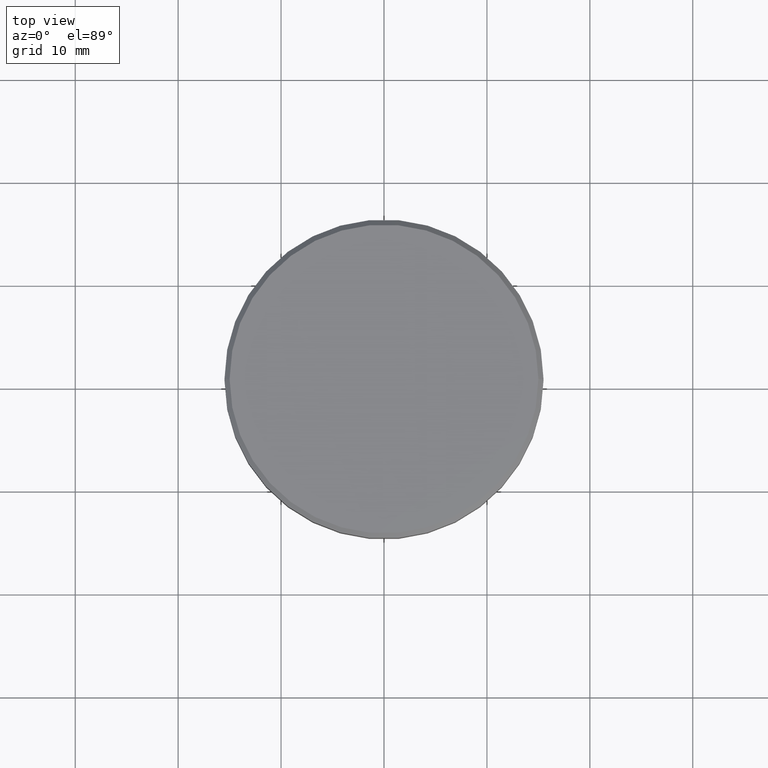
[diagram: clean part render]
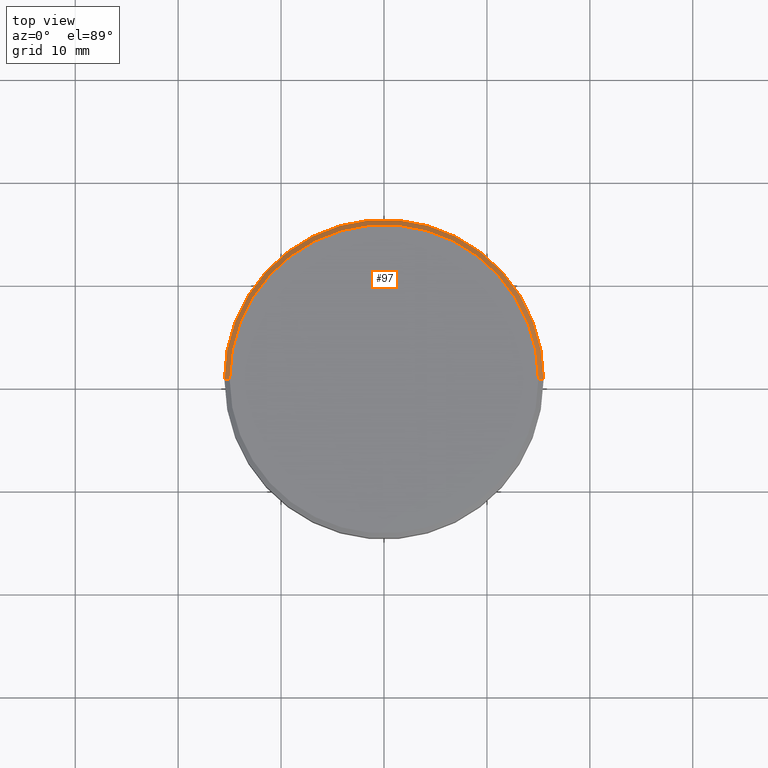
[diagram: same view with one face highlighted and labeled with its STEP entity id]
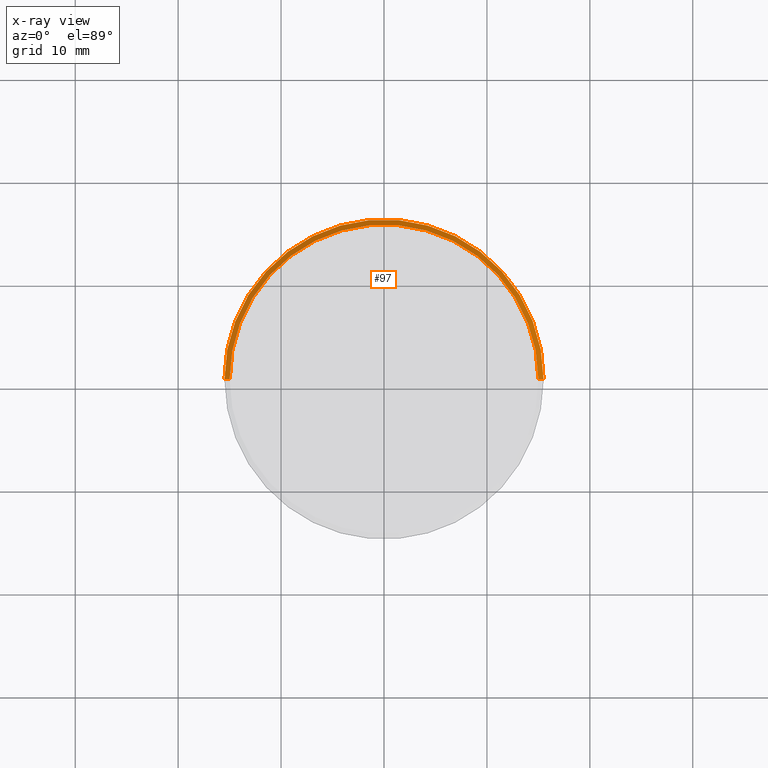
[diagram: x-ray of the same camera — body ghosted, the highlighted face saturated]
A machine part, top view. The second image highlights one B-rep face of the part: STEP entity #97.
The next image is the same camera in x-ray: the body ghosted, the highlighted face saturated — about 0% of this face is hidden behind the body in this view.
In plain terms, the highlighted conical surface has half-angle 45 deg.
Its self-contained STEP definition (entity closure, byte-faithful):
#45 = DIRECTION ( 'NONE',  ( 1.000000000000000000, 0.000000000000000000, 0.000000000000000000 ) ) ;
#51 = DIRECTION ( 'NONE',  ( 0.000000000000000000, 0.000000000000000000, -1.000000000000000000 ) ) ;
#71 = LINE ( 'NONE', #918, #846 ) ;
#94 = ORIENTED_EDGE ( 'NONE', *, *, #562, .F. ) ;
#97 = ADVANCED_FACE ( 'NONE', ( #658 ), #326, .T. ) ;
#122 = DIRECTION ( 'NONE',  ( 0.000000000000000000, 0.000000000000000000, -1.000000000000000000 ) ) ;
#126 = DIRECTION ( 'NONE',  ( 0.7071067811865439090, 8.659560562354888485E-17, -0.7071067811865512365 ) ) ;
#137 = VECTOR ( 'NONE', #126, 999.9999999999998863 ) ;
#157 = AXIS2_PLACEMENT_3D ( 'NONE', #873, #51, #45 ) ;
#181 = ORIENTED_EDGE ( 'NONE', *, *, #679, .F. ) ;
#290 = CARTESIAN_POINT ( 'NONE',  ( 0.000000000000000000, 0.000000000000000000, 0.000000000000000000 ) ) ;
#326 = CONICAL_SURFACE ( 'NONE', #789, 15.00000000000000000, 0.7853981633974430610 ) ;
#416 = DIRECTION ( 'NONE',  ( -0.000000000000000000, -0.000000000000000000, 1.000000000000000000 ) ) ;
#517 = ORIENTED_EDGE ( 'NONE', *, *, #847, .T. ) ;
#527 = CARTESIAN_POINT ( 'NONE',  ( 15.00000000000000000, 1.867586368699713376E-15, 0.000000000000000000 ) ) ;
#562 = EDGE_CURVE ( 'NONE', #916, #608, #1160, .T. ) ;
#564 = CARTESIAN_POINT ( 'NONE',  ( -15.00000000000000000, 0.000000000000000000, 0.000000000000000000 ) ) ;
#572 = AXIS2_PLACEMENT_3D ( 'NONE', #290, #416, #840 ) ;
#608 = VERTEX_POINT ( 'NONE', #725 ) ;
#658 = FACE_OUTER_BOUND ( 'NONE', #1031, .T. ) ;
#679 = EDGE_CURVE ( 'NONE', #1183, #916, #71, .T. ) ;
#718 = CIRCLE ( 'NONE', #572, 15.00000000000000000 ) ;
#725 = CARTESIAN_POINT ( 'NONE',  ( 15.50000000000000000, 0.000000000000000000, -0.5000000000000057732 ) ) ;
#735 = EDGE_CURVE ( 'NONE', #923, #1183, #718, .T. ) ;
#789 = AXIS2_PLACEMENT_3D ( 'NONE', #1021, #122, #837 ) ;
#837 = DIRECTION ( 'NONE',  ( -1.000000000000000000, 0.000000000000000000, 0.000000000000000000 ) ) ;
#840 = DIRECTION ( 'NONE',  ( 1.000000000000000000, 0.000000000000000000, 0.000000000000000000 ) ) ;
#846 = VECTOR ( 'NONE', #913, 999.9999999999998863 ) ;
#847 = EDGE_CURVE ( 'NONE', #923, #608, #933, .T. ) ;
#873 = CARTESIAN_POINT ( 'NONE',  ( 0.000000000000000000, 0.000000000000000000, -0.5000000000000057732 ) ) ;
#903 = ORIENTED_EDGE ( 'NONE', *, *, #735, .F. ) ;
#913 = DIRECTION ( 'NONE',  ( -0.7071067811865439090, 0.000000000000000000, -0.7071067811865512365 ) ) ;
#916 = VERTEX_POINT ( 'NONE', #1071 ) ;
#918 = CARTESIAN_POINT ( 'NONE',  ( -15.00000000000000000, 0.000000000000000000, 0.000000000000000000 ) ) ;
#923 = VERTEX_POINT ( 'NONE', #527 ) ;
#933 = LINE ( 'NONE', #938, #137 ) ;
#938 = CARTESIAN_POINT ( 'NONE',  ( 15.00000000000000000, 1.836970198721029589E-15, 0.000000000000000000 ) ) ;
#1021 = CARTESIAN_POINT ( 'NONE',  ( 0.000000000000000000, 0.000000000000000000, 0.000000000000000000 ) ) ;
#1031 = EDGE_LOOP ( 'NONE', ( #903, #517, #94, #181 ) ) ;
#1071 = CARTESIAN_POINT ( 'NONE',  ( -15.50000000000000000, 1.898202538678397557E-15, -0.5000000000000057732 ) ) ;
#1160 = CIRCLE ( 'NONE', #157, 15.50000000000000000 ) ;
#1183 = VERTEX_POINT ( 'NONE', #564 ) ;